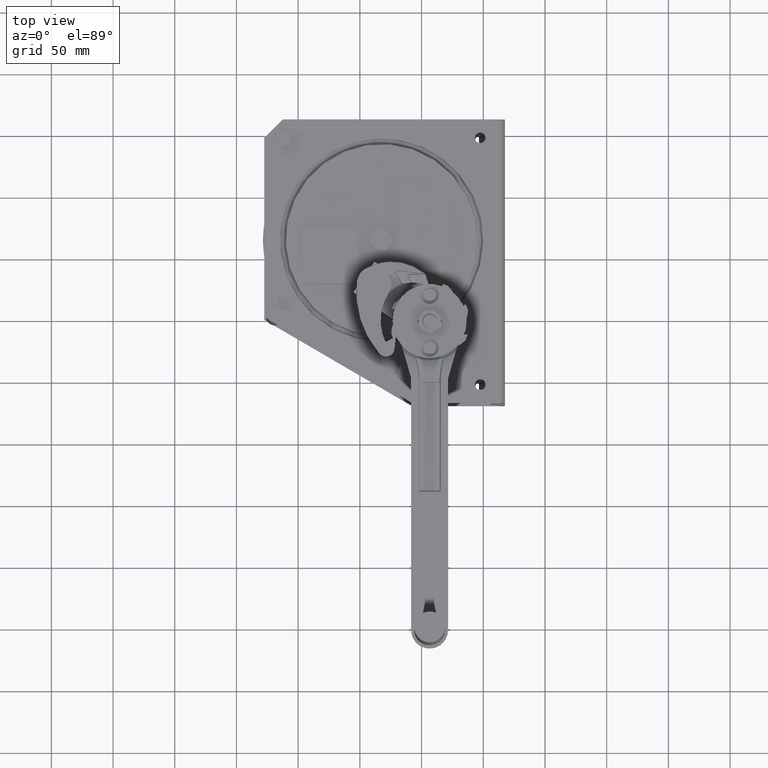
[diagram: clean part render]
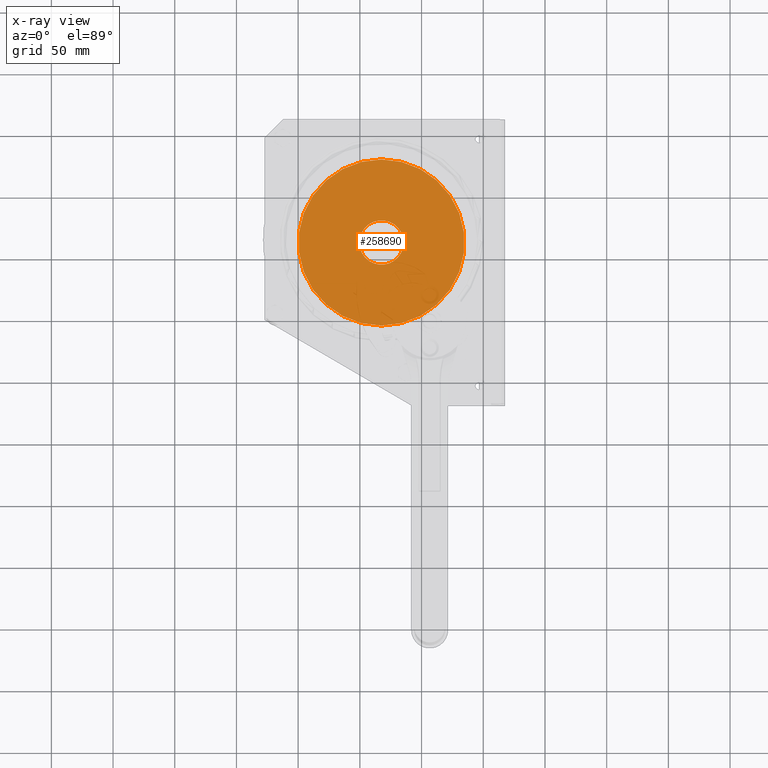
[diagram: x-ray — body ghosted, one internal face saturated and labeled with its STEP entity id]
A machine part, top view, then the same camera in x-ray: the body is ghosted and one INTERNAL B-rep face — a face not visible from any outside direction — is saturated and labeled: STEP entity #258690.
In plain terms, the highlighted planar face has unit normal (0, 0, -1).
Its self-contained STEP definition (entity closure, byte-faithful):
#238140=CARTESIAN_POINT('',(-35.9683450918841,-328.226427537302,0.));
#238150=VERTEX_POINT('',#238140);
#238180=CARTESIAN_POINT('',(-35.9683450918841,-260.918201438849,0.));
#238190=DIRECTION('',(1.,0.,0.));
#238200=DIRECTION('',(0.,1.,0.));
#238210=AXIS2_PLACEMENT_3D('',#238180,#238190,#238200);
#238220=CIRCLE('',#238210,67.3082260984533);
#238230=CARTESIAN_POINT('',(-35.9683450918841,-193.609975340396,0.));
#238240=VERTEX_POINT('',#238230);
#238250=EDGE_CURVE('',#238150,#238240,#238220,.T.);
#252710=CARTESIAN_POINT('',(-35.9683450918841,-260.918201438849,
-17.9999999999999));
#252720=VERTEX_POINT('',#252710);
#252900=CARTESIAN_POINT('',(-35.9683450918841,-260.918201438849,
17.9999999999999));
#252910=VERTEX_POINT('',#252900);
#252940=CARTESIAN_POINT('',(-35.9683450918841,-260.918201438849,0.));
#252950=DIRECTION('',(1.,0.,0.));
#252960=DIRECTION('',(0.,0.,1.));
#252970=AXIS2_PLACEMENT_3D('',#252940,#252950,#252960);
#252980=CIRCLE('',#252970,17.9999999999999);
#252990=EDGE_CURVE('',#252720,#252910,#252980,.T.);
#258540=CARTESIAN_POINT('',(-35.9683450918841,-216.764088389622,0.));
#258550=DIRECTION('',(1.,0.,0.));
#258560=DIRECTION('',(0.,-1.,0.));
#258570=AXIS2_PLACEMENT_3D('',#258540,#258550,#258560);
#258580=PLANE('',#258570);
#258590=EDGE_CURVE('',#238240,#238150,#238220,.T.);
#258600=ORIENTED_EDGE('',*,*,#258590,.T.);
#258610=ORIENTED_EDGE('',*,*,#238250,.T.);
#258620=EDGE_LOOP('',(#258610,#258600));
#258630=FACE_OUTER_BOUND('',#258620,.T.);
#258640=EDGE_CURVE('',#252910,#252720,#252980,.T.);
#258650=ORIENTED_EDGE('',*,*,#258640,.F.);
#258660=ORIENTED_EDGE('',*,*,#252990,.F.);
#258670=EDGE_LOOP('',(#258660,#258650));
#258680=FACE_BOUND('',#258670,.T.);
#258690=ADVANCED_FACE('',(#258630,#258680),#258580,.T.);